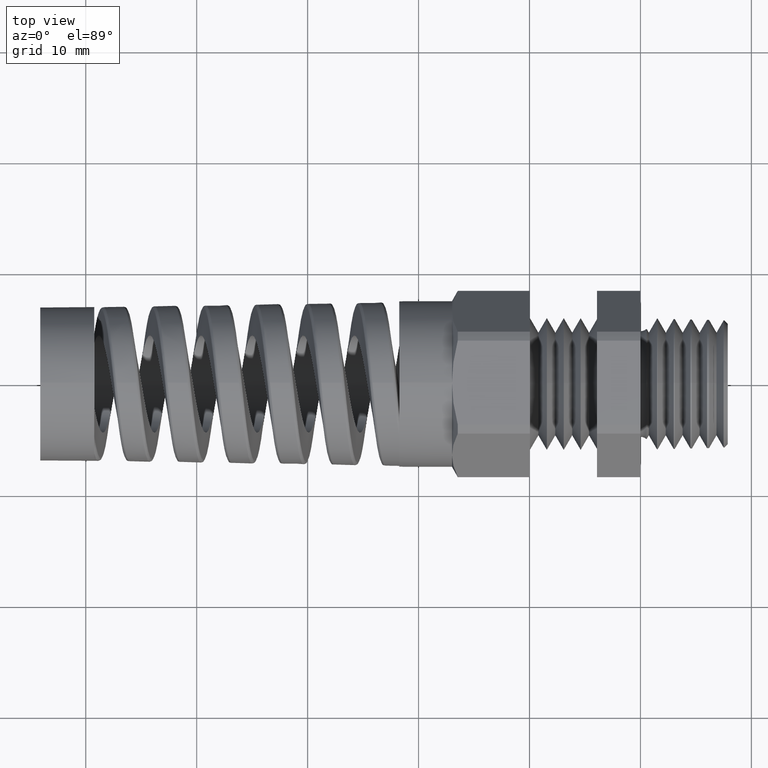
[diagram: clean part render]
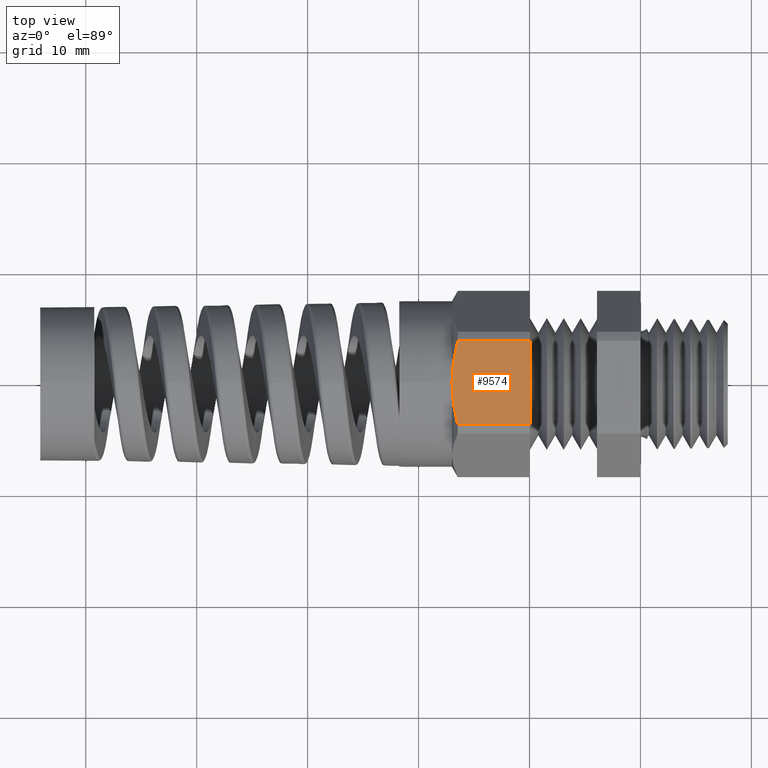
[diagram: same view with one face highlighted and labeled with its STEP entity id]
A machine part, top view. The second image highlights one B-rep face of the part: STEP entity #9574.
In plain terms, the highlighted planar face has unit normal (0, 0, 1).
Its self-contained STEP definition (entity closure, byte-faithful):
#850 = VERTEX_POINT ( 'NONE', #8289 ) ;
#851 = VERTEX_POINT ( 'NONE', #8288 ) ;
#3571 = EDGE_CURVE ( 'NONE', #850, #851, #8345, .T. ) ;
#4575 = VERTEX_POINT ( 'NONE', #8368 ) ;
#4926 = CARTESIAN_POINT ( 'NONE',  ( -0.6687499999999999600, 0.0000000000000000000, 0.2949999999999999800 ) ) ;
#5053 = DIRECTION ( 'NONE',  ( 0.0000000000000000000, 1.000000000000000000, 0.0000000000000000000 ) ) ;
#5054 = VECTOR ( 'NONE', #5053, 39.37007874015748100 ) ;
#5055 = CARTESIAN_POINT ( 'NONE',  ( -0.3920833333333332800, 0.2350000000000000100, 0.2950000000000000400 ) ) ;
#5056 = LINE ( 'NONE', #5055, #5054 ) ;
#5153 = PLANE ( 'NONE',  #5205 ) ;
#5173 = FACE_OUTER_BOUND ( 'NONE', #7379, .T. ) ;
#5202 = DIRECTION ( 'NONE',  ( 1.000000000000000000, 0.0000000000000000000, 0.0000000000000000000 ) ) ;
#5203 = DIRECTION ( 'NONE',  ( 0.0000000000000000000, 0.0000000000000000000, 1.000000000000000000 ) ) ;
#5204 = CARTESIAN_POINT ( 'NONE',  ( -1.612607445236302600, 0.1487923385124382800, 0.2950000000000000400 ) ) ;
#5205 = AXIS2_PLACEMENT_3D ( 'NONE', #5204, #5203, #5202 ) ;
#6577 = VERTEX_POINT ( 'NONE', #8406 ) ;
#7359 = EDGE_CURVE ( 'NONE', #4575, #6577, #8453, .T. ) ;
#7373 = ORIENTED_EDGE ( 'NONE', *, *, #3571, .F. ) ;
#7374 = ORIENTED_EDGE ( 'NONE', *, *, #7359, .T. ) ;
#7377 = ORIENTED_EDGE ( 'NONE', *, *, #7378, .T. ) ;
#7378 = EDGE_CURVE ( 'NONE', #8138, #4575, #8477, .T. ) ;
#7379 = EDGE_LOOP ( 'NONE', ( #7373, #7381, #7377, #7374, #9512 ) ) ;
#7380 = EDGE_CURVE ( 'NONE', #850, #8138, #8470, .T. ) ;
#7381 = ORIENTED_EDGE ( 'NONE', *, *, #7380, .T. ) ;
#8138 = VERTEX_POINT ( 'NONE', #4926 ) ;
#8288 = CARTESIAN_POINT ( 'NONE',  ( -0.3920833333333332800, 0.1487923385124382000, 0.2950000000000000400 ) ) ;
#8289 = CARTESIAN_POINT ( 'NONE',  ( -0.6483118004706872600, 0.1487923385124382000, 0.2950000000000000400 ) ) ;
#8342 = DIRECTION ( 'NONE',  ( 1.000000000000000000, 0.0000000000000000000, 0.0000000000000000000 ) ) ;
#8343 = VECTOR ( 'NONE', #8342, 39.37007874015748100 ) ;
#8344 = CARTESIAN_POINT ( 'NONE',  ( -1.612607445236302600, 0.1487923385124382000, 0.2950000000000000400 ) ) ;
#8345 = LINE ( 'NONE', #8344, #8343 ) ;
#8368 = CARTESIAN_POINT ( 'NONE',  ( -0.6483118004706872600, -0.1487923385124382800, 0.2950000000000000400 ) ) ;
#8406 = CARTESIAN_POINT ( 'NONE',  ( -0.3920833333333332800, -0.1487923385124382800, 0.2950000000000000400 ) ) ;
#8449 = DIRECTION ( 'NONE',  ( 1.000000000000000000, 0.0000000000000000000, 0.0000000000000000000 ) ) ;
#8450 = VECTOR ( 'NONE', #8449, 39.37007874015748100 ) ;
#8452 = CARTESIAN_POINT ( 'NONE',  ( -1.612607445236302600, -0.1487923385124382800, 0.2950000000000000400 ) ) ;
#8453 = LINE ( 'NONE', #8452, #8450 ) ;
#8459 = CARTESIAN_POINT ( 'NONE',  ( -0.6687499999999999600, 0.0000000000000000000, 0.2949999999999999800 ) ) ;
#8460 = CARTESIAN_POINT ( 'NONE',  ( -0.6687499999999996200, 0.01251102984057282000, 0.2949999999999999800 ) ) ;
#8461 = CARTESIAN_POINT ( 'NONE',  ( -0.6682886392550063700, 0.02504818793965519000, 0.2949999999999999800 ) ) ;
#8462 = CARTESIAN_POINT ( 'NONE',  ( -0.6664539795682502500, 0.05017414996423313900, 0.2949999999999999800 ) ) ;
#8463 = CARTESIAN_POINT ( 'NONE',  ( -0.6650738706461848400, 0.06279360639189912600, 0.2949999999999999800 ) ) ;
#8464 = CARTESIAN_POINT ( 'NONE',  ( -0.6597381713101825300, 0.1001808597390345100, 0.2950000000000000400 ) ) ;
#8465 = CARTESIAN_POINT ( 'NONE',  ( -0.6545892602780010200, 0.1246486267720971100, 0.2950000000000000400 ) ) ;
#8466 = CARTESIAN_POINT ( 'NONE',  ( -0.6483118004706872600, 0.1487923385124382000, 0.2950000000000000400 ) ) ;
#8470 = B_SPLINE_CURVE_WITH_KNOTS ( 'NONE', 3,
 ( #8466, #8465, #8464, #8463, #8462, #8461, #8460, #8459 ),
 .UNSPECIFIED., .F., .F.,
 ( 4, 2, 2, 4 ),
 ( 0.004185498858992004400, 0.006085812393149498500, 0.007035969160228243400, 0.007986125927306990000 ),
 .UNSPECIFIED. ) ;
#8471 = CARTESIAN_POINT ( 'NONE',  ( -0.6483118004706872600, -0.1487923385124382800, 0.2950000000000000400 ) ) ;
#8472 = CARTESIAN_POINT ( 'NONE',  ( -0.6546358786678908600, -0.1244693279789878800, 0.2950000000000000400 ) ) ;
#8473 = CARTESIAN_POINT ( 'NONE',  ( -0.6598382952289477700, -0.09962235669522284700, 0.2949999999999999800 ) ) ;
#8474 = CARTESIAN_POINT ( 'NONE',  ( -0.6668849065099121700, -0.04995790088282993400, 0.2950000000000000400 ) ) ;
#8475 = CARTESIAN_POINT ( 'NONE',  ( -0.6687499999999999600, -0.02503176339243233900, 0.2949999999999999800 ) ) ;
#8476 = CARTESIAN_POINT ( 'NONE',  ( -0.6687499999999999600, 0.0000000000000000000, 0.2949999999999999800 ) ) ;
#8477 = B_SPLINE_CURVE_WITH_KNOTS ( 'NONE', 3,
 ( #8476, #8475, #8474, #8473, #8472, #8471 ),
 .UNSPECIFIED., .F., .F.,
 ( 4, 2, 4 ),
 ( 0.007986125927306990000, 0.009887176414941712200, 0.01178822690257643400 ),
 .UNSPECIFIED. ) ;
#9512 = ORIENTED_EDGE ( 'NONE', *, *, #9513, .T. ) ;
#9513 = EDGE_CURVE ( 'NONE', #6577, #851, #5056, .T. ) ;
#9574 = ADVANCED_FACE ( 'NONE', ( #5173 ), #5153, .T. ) ;